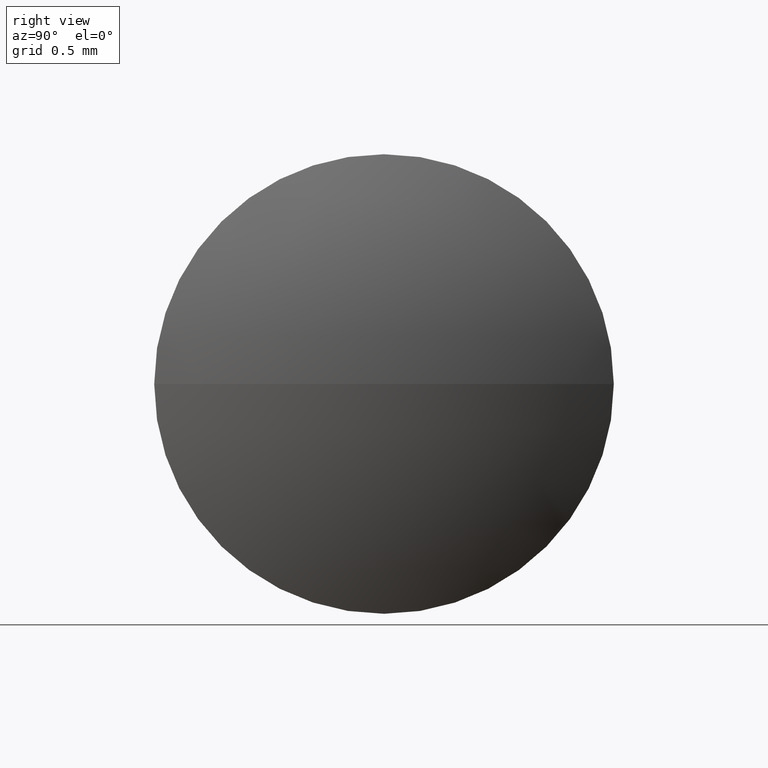
[diagram: clean part render]
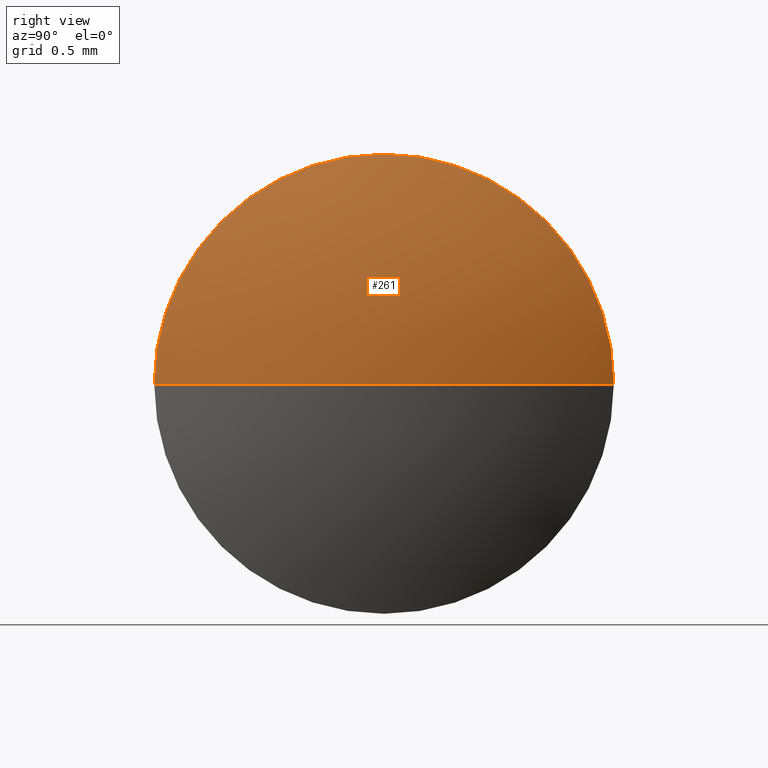
[diagram: same view with one face highlighted and labeled with its STEP entity id]
A machine part, right view. The second image highlights one B-rep face of the part: STEP entity #261.
In plain terms, the highlighted spherical surface has radius 2.2889 mm.
Its self-contained STEP definition (entity closure, byte-faithful):
#10 = CARTESIAN_POINT ( 'NONE',  ( 7.307731793281250900, 2.828040395526708400, 0.0000000000000000000 ) ) ;
#16 = VERTEX_POINT ( 'NONE', #10 ) ;
#25 = CARTESIAN_POINT ( 'NONE',  ( 5.248818749803096000, 3.828040395526767000, 0.0000000000000000000 ) ) ;
#50 = CARTESIAN_POINT ( 'NONE',  ( 5.248818749803096000, 3.828040395526767000, 0.0000000000000000000 ) ) ;
#51 = DIRECTION ( 'NONE',  ( 1.214306433183667600E-014, -1.000000000000000000, 0.0000000000000000000 ) ) ;
#63 = AXIS2_PLACEMENT_3D ( 'NONE', #25, #70, #213 ) ;
#65 = AXIS2_PLACEMENT_3D ( 'NONE', #98, #217, #260 ) ;
#66 = ORIENTED_EDGE ( 'NONE', *, *, #172, .T. ) ;
#70 = DIRECTION ( 'NONE',  ( -0.0000000000000000000, 0.0000000000000000000, 1.000000000000000000 ) ) ;
#87 = FACE_OUTER_BOUND ( 'NONE', #135, .T. ) ;
#90 = CIRCLE ( 'NONE', #134, 1.000000000000080200 ) ;
#91 = DIRECTION ( 'NONE',  ( 0.0000000000000000000, -1.000000000000000000, -1.224646799147353000E-016 ) ) ;
#98 = CARTESIAN_POINT ( 'NONE',  ( 5.248818749803096000, 3.828040395526767000, 0.0000000000000000000 ) ) ;
#104 = CIRCLE ( 'NONE', #300, 2.288913043478189900 ) ;
#134 = AXIS2_PLACEMENT_3D ( 'NONE', #235, #256, #51 ) ;
#135 = EDGE_LOOP ( 'NONE', ( #192, #66, #150 ) ) ;
#139 = VERTEX_POINT ( 'NONE', #151 ) ;
#147 = CIRCLE ( 'NONE', #65, 2.288913043478189900 ) ;
#150 = ORIENTED_EDGE ( 'NONE', *, *, #208, .F. ) ;
#151 = CARTESIAN_POINT ( 'NONE',  ( 7.307731793281226900, 4.828040395526868700, 1.224646799147445900E-016 ) ) ;
#155 = EDGE_CURVE ( 'NONE', #246, #16, #147, .T. ) ;
#172 = EDGE_CURVE ( 'NONE', #246, #139, #104, .T. ) ;
#192 = ORIENTED_EDGE ( 'NONE', *, *, #155, .F. ) ;
#208 = EDGE_CURVE ( 'NONE', #16, #139, #90, .T. ) ;
#210 = SPHERICAL_SURFACE ( 'NONE', #63, 2.288913043478189900 ) ;
#213 = DIRECTION ( 'NONE',  ( 1.250503483964704600E-014, -1.000000000000000000, 0.0000000000000000000 ) ) ;
#217 = DIRECTION ( 'NONE',  ( 0.0000000000000000000, 0.0000000000000000000, -1.000000000000000000 ) ) ;
#235 = CARTESIAN_POINT ( 'NONE',  ( 7.307731793281239300, 3.828040395526784800, 0.0000000000000000000 ) ) ;
#240 = DIRECTION ( 'NONE',  ( 1.512632348803089900E-030, -1.224646799147353200E-016, 1.000000000000000000 ) ) ;
#246 = VERTEX_POINT ( 'NONE', #259 ) ;
#256 = DIRECTION ( 'NONE',  ( -1.000000000000000000, -1.235158047084468200E-014, -0.0000000000000000000 ) ) ;
#259 = CARTESIAN_POINT ( 'NONE',  ( 7.537731793281286000, 3.828040395526795400, 0.0000000000000000000 ) ) ;
#260 = DIRECTION ( 'NONE',  ( -1.000000000000000000, 0.0000000000000000000, 0.0000000000000000000 ) ) ;
#261 = ADVANCED_FACE ( 'NONE', ( #87 ), #210, .T. ) ;
#300 = AXIS2_PLACEMENT_3D ( 'NONE', #50, #240, #91 ) ;